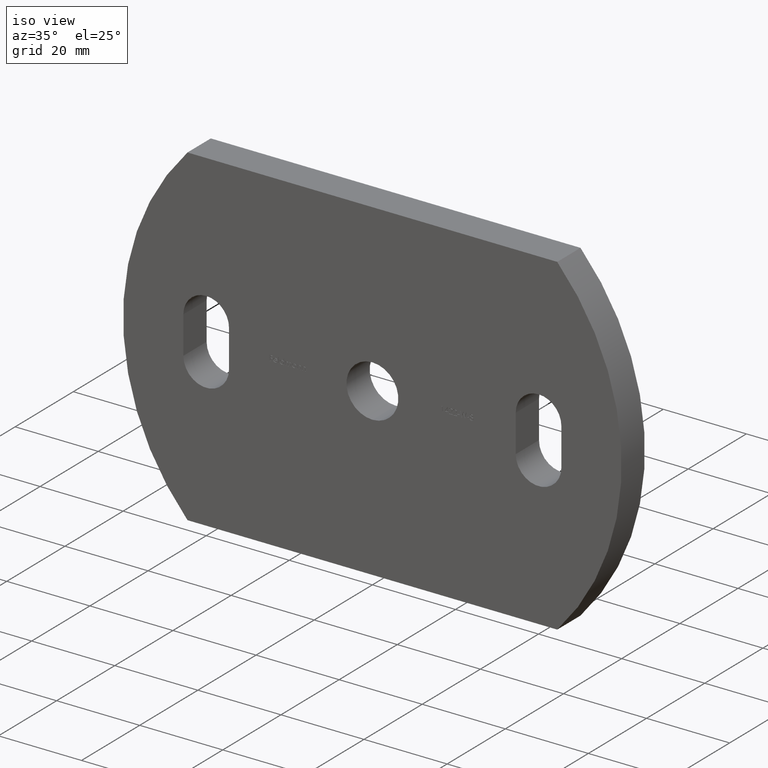
[diagram: clean part render]
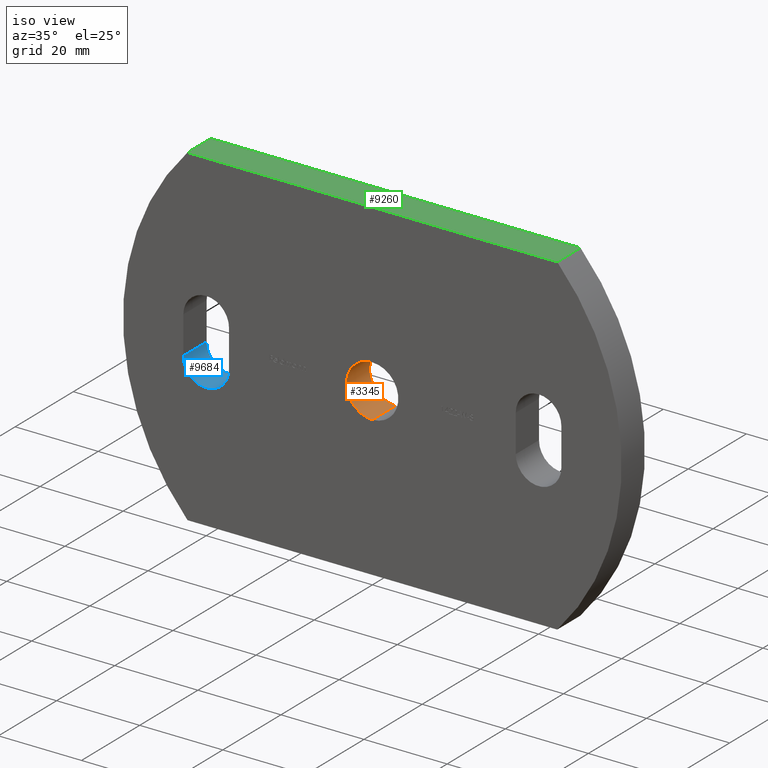
[diagram: same view with three faces highlighted in distinct colors, each labeled with its STEP entity id]
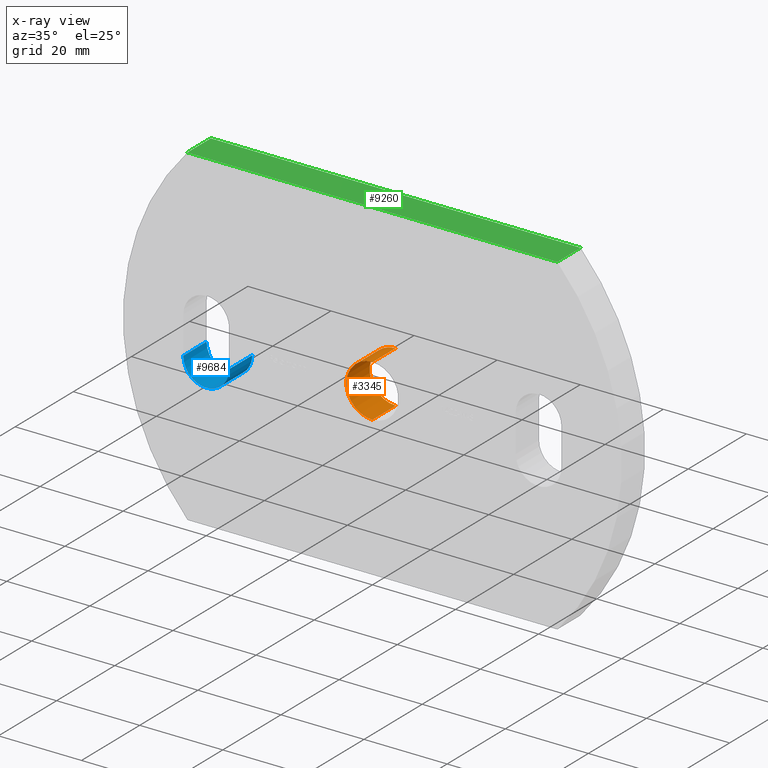
[diagram: x-ray of the same camera — body ghosted, the three highlighted faces saturated]
A machine part, iso view with three faces highlighted in distinct colors.
The next image is the same camera in x-ray (body ghosted, the three faces saturated) — at least one of them is partly hidden behind the body in this view.
Their STEP definitions:

[orange] entity #3345 — the highlighted cylindrical surface (edge-blend (fillet) strip) has radius 6.25 mm, axis along (-0, 1, -0).
#78 = VERTEX_POINT ( 'NONE', #427 ) ;
#427 = CARTESIAN_POINT ( 'NONE',  ( 0.0000000000000000000, 0.0000000000000000000, 6.250000000000000000 ) ) ;
#518 = DIRECTION ( 'NONE',  ( -0.0000000000000000000, 1.000000000000000000, -0.0000000000000000000 ) ) ;
#854 = CARTESIAN_POINT ( 'NONE',  ( 0.0000000000000000000, 0.0000000000000000000, 0.0000000000000000000 ) ) ;
#966 = DIRECTION ( 'NONE',  ( 0.0000000000000000000, 0.0000000000000000000, 1.000000000000000000 ) ) ;
#1030 = CARTESIAN_POINT ( 'NONE',  ( 0.0000000000000000000, 0.0000000000000000000, 6.250000000000000000 ) ) ;
#1176 = VECTOR ( 'NONE', #518, 1000.000000000000000 ) ;
#1422 = AXIS2_PLACEMENT_3D ( 'NONE', #854, #6079, #7661 ) ;
#1505 = EDGE_CURVE ( 'NONE', #8045, #78, #10433, .T. ) ;
#1748 = DIRECTION ( 'NONE',  ( 0.0000000000000000000, 1.000000000000000000, 0.0000000000000000000 ) ) ;
#1817 = LINE ( 'NONE', #1030, #1176 ) ;
#2091 = ORIENTED_EDGE ( 'NONE', *, *, #1505, .F. ) ;
#2269 = CYLINDRICAL_SURFACE ( 'NONE', #1422, 6.250000000000000000 ) ;
#2776 = EDGE_LOOP ( 'NONE', ( #2091, #9174, #10166, #3926 ) ) ;
#3345 = ADVANCED_FACE ( 'NONE', ( #10808 ), #2269, .F. ) ;
#3752 = DIRECTION ( 'NONE',  ( 0.0000000000000000000, 1.000000000000000000, 0.0000000000000000000 ) ) ;
#3764 = VERTEX_POINT ( 'NONE', #9494 ) ;
#3926 = ORIENTED_EDGE ( 'NONE', *, *, #5828, .F. ) ;
#4636 = CARTESIAN_POINT ( 'NONE',  ( 0.0000000000000000000, 8.000000000000000000, 0.0000000000000000000 ) ) ;
#5828 = EDGE_CURVE ( 'NONE', #78, #7514, #1817, .T. ) ;
#5871 = CIRCLE ( 'NONE', #9036, 6.250000000000000000 ) ;
#6079 = DIRECTION ( 'NONE',  ( -0.0000000000000000000, 1.000000000000000000, -0.0000000000000000000 ) ) ;
#6903 = DIRECTION ( 'NONE',  ( -0.0000000000000000000, 1.000000000000000000, -0.0000000000000000000 ) ) ;
#7087 = EDGE_CURVE ( 'NONE', #3764, #7514, #5871, .T. ) ;
#7514 = VERTEX_POINT ( 'NONE', #10589 ) ;
#7661 = DIRECTION ( 'NONE',  ( 0.0000000000000000000, 0.0000000000000000000, 1.000000000000000000 ) ) ;
#8045 = VERTEX_POINT ( 'NONE', #8659 ) ;
#8450 = LINE ( 'NONE', #8553, #9526 ) ;
#8553 = CARTESIAN_POINT ( 'NONE',  ( 7.654042494670957600E-016, 0.0000000000000000000, -6.250000000000000000 ) ) ;
#8659 = CARTESIAN_POINT ( 'NONE',  ( 7.654042494670957600E-016, 0.0000000000000000000, -6.250000000000000000 ) ) ;
#8792 = DIRECTION ( 'NONE',  ( 0.0000000000000000000, 0.0000000000000000000, 1.000000000000000000 ) ) ;
#9036 = AXIS2_PLACEMENT_3D ( 'NONE', #4636, #3752, #8792 ) ;
#9174 = ORIENTED_EDGE ( 'NONE', *, *, #10484, .T. ) ;
#9284 = CARTESIAN_POINT ( 'NONE',  ( 0.0000000000000000000, 0.0000000000000000000, 0.0000000000000000000 ) ) ;
#9424 = AXIS2_PLACEMENT_3D ( 'NONE', #9284, #1748, #966 ) ;
#9494 = CARTESIAN_POINT ( 'NONE',  ( 7.654042494670957600E-016, 8.000000000000000000, -6.250000000000000000 ) ) ;
#9526 = VECTOR ( 'NONE', #6903, 1000.000000000000000 ) ;
#10166 = ORIENTED_EDGE ( 'NONE', *, *, #7087, .T. ) ;
#10433 = CIRCLE ( 'NONE', #9424, 6.250000000000000000 ) ;
#10484 = EDGE_CURVE ( 'NONE', #8045, #3764, #8450, .T. ) ;
#10589 = CARTESIAN_POINT ( 'NONE',  ( 0.0000000000000000000, 8.000000000000000000, 6.250000000000000000 ) ) ;
#10808 = FACE_OUTER_BOUND ( 'NONE', #2776, .T. ) ;

[blue] entity #9684 — the highlighted cylindrical surface (edge-blend (fillet) strip) has radius 5.5 mm, axis along (-0, 1, -0).
#23 = ORIENTED_EDGE ( 'NONE', *, *, #3245, .T. ) ;
#493 = VECTOR ( 'NONE', #8169, 1000.000000000000000 ) ;
#669 = CARTESIAN_POINT ( 'NONE',  ( -45.50000000000000000, 0.0000000000000000000, -4.499999999999989300 ) ) ;
#847 = CARTESIAN_POINT ( 'NONE',  ( -45.50000000000000000, 0.0000000000000000000, -4.499999999999989300 ) ) ;
#1130 = AXIS2_PLACEMENT_3D ( 'NONE', #4068, #5672, #1419 ) ;
#1419 = DIRECTION ( 'NONE',  ( 0.0000000000000000000, 0.0000000000000000000, 1.000000000000000000 ) ) ;
#1660 = CARTESIAN_POINT ( 'NONE',  ( -40.00000000000000000, 0.0000000000000000000, -4.500000000000008000 ) ) ;
#2093 = DIRECTION ( 'NONE',  ( 0.0000000000000000000, 1.000000000000000000, 0.0000000000000000000 ) ) ;
#2316 = EDGE_LOOP ( 'NONE', ( #23, #3471, #4824, #9014 ) ) ;
#2320 = CIRCLE ( 'NONE', #6392, 5.499999999999998200 ) ;
#3183 = DIRECTION ( 'NONE',  ( -0.0000000000000000000, 1.000000000000000000, -0.0000000000000000000 ) ) ;
#3245 = EDGE_CURVE ( 'NONE', #7723, #6645, #7110, .T. ) ;
#3471 = ORIENTED_EDGE ( 'NONE', *, *, #8226, .F. ) ;
#3808 = DIRECTION ( 'NONE',  ( 0.0000000000000000000, 0.0000000000000000000, 1.000000000000000000 ) ) ;
#3927 = VECTOR ( 'NONE', #3183, 1000.000000000000000 ) ;
#4068 = CARTESIAN_POINT ( 'NONE',  ( -40.00000000000000000, 0.0000000000000000000, -4.500000000000008000 ) ) ;
#4652 = CARTESIAN_POINT ( 'NONE',  ( -40.00000000000000000, 8.000000000000000000, -4.500000000000008000 ) ) ;
#4824 = ORIENTED_EDGE ( 'NONE', *, *, #8668, .F. ) ;
#4844 = LINE ( 'NONE', #7299, #493 ) ;
#4963 = VERTEX_POINT ( 'NONE', #847 ) ;
#5672 = DIRECTION ( 'NONE',  ( -0.0000000000000000000, 1.000000000000000000, -0.0000000000000000000 ) ) ;
#6112 = AXIS2_PLACEMENT_3D ( 'NONE', #4652, #2093, #3808 ) ;
#6168 = VERTEX_POINT ( 'NONE', #10424 ) ;
#6392 = AXIS2_PLACEMENT_3D ( 'NONE', #1660, #9306, #7448 ) ;
#6645 = VERTEX_POINT ( 'NONE', #8583 ) ;
#7110 = CIRCLE ( 'NONE', #6112, 5.499999999999998200 ) ;
#7299 = CARTESIAN_POINT ( 'NONE',  ( -34.50000000000000000, 0.0000000000000000000, -4.499999999999987600 ) ) ;
#7448 = DIRECTION ( 'NONE',  ( 0.0000000000000000000, 0.0000000000000000000, 1.000000000000000000 ) ) ;
#7556 = EDGE_CURVE ( 'NONE', #6168, #7723, #4844, .T. ) ;
#7723 = VERTEX_POINT ( 'NONE', #10015 ) ;
#8169 = DIRECTION ( 'NONE',  ( -0.0000000000000000000, 1.000000000000000000, -0.0000000000000000000 ) ) ;
#8226 = EDGE_CURVE ( 'NONE', #4963, #6645, #8743, .T. ) ;
#8583 = CARTESIAN_POINT ( 'NONE',  ( -45.50000000000000000, 8.000000000000000000, -4.499999999999989300 ) ) ;
#8668 = EDGE_CURVE ( 'NONE', #6168, #4963, #2320, .T. ) ;
#8743 = LINE ( 'NONE', #669, #3927 ) ;
#9014 = ORIENTED_EDGE ( 'NONE', *, *, #7556, .T. ) ;
#9306 = DIRECTION ( 'NONE',  ( 0.0000000000000000000, 1.000000000000000000, 0.0000000000000000000 ) ) ;
#9657 = CYLINDRICAL_SURFACE ( 'NONE', #1130, 5.499999999999998200 ) ;
#9684 = ADVANCED_FACE ( 'NONE', ( #9784 ), #9657, .F. ) ;
#9784 = FACE_OUTER_BOUND ( 'NONE', #2316, .T. ) ;
#10015 = CARTESIAN_POINT ( 'NONE',  ( -34.50000000000000000, 8.000000000000000000, -4.499999999999987600 ) ) ;
#10424 = CARTESIAN_POINT ( 'NONE',  ( -34.50000000000000000, 0.0000000000000000000, -4.499999999999987600 ) ) ;

[green] entity #9260 — the highlighted planar face has unit normal (0, 0, -1).
#179 = VECTOR ( 'NONE', #6955, 1000.000000000000000 ) ;
#220 = ORIENTED_EDGE ( 'NONE', *, *, #6431, .F. ) ;
#999 = ORIENTED_EDGE ( 'NONE', *, *, #9963, .T. ) ;
#1132 = ORIENTED_EDGE ( 'NONE', *, *, #2021, .T. ) ;
#1484 = CARTESIAN_POINT ( 'NONE',  ( 44.49999999999997900, 8.000000000000000000, 40.00000000000001400 ) ) ;
#1876 = VECTOR ( 'NONE', #3318, 1000.000000000000000 ) ;
#2021 = EDGE_CURVE ( 'NONE', #7483, #5189, #10421, .T. ) ;
#2163 = CARTESIAN_POINT ( 'NONE',  ( -44.50000000000002100, 0.0000000000000000000, 39.99999999999999300 ) ) ;
#2331 = DIRECTION ( 'NONE',  ( -0.0000000000000000000, -1.000000000000000000, -0.0000000000000000000 ) ) ;
#2342 = EDGE_CURVE ( 'NONE', #6479, #3096, #5025, .T. ) ;
#2449 = CARTESIAN_POINT ( 'NONE',  ( -44.50000000000002100, 8.000000000000000000, 39.99999999999999300 ) ) ;
#3096 = VERTEX_POINT ( 'NONE', #7006 ) ;
#3318 = DIRECTION ( 'NONE',  ( 1.000000000000000000, 0.0000000000000000000, 2.338953001317043400E-016 ) ) ;
#3464 = CARTESIAN_POINT ( 'NONE',  ( -44.50000000000002100, 8.000000000000000000, 39.99999999999999300 ) ) ;
#3944 = VECTOR ( 'NONE', #2331, 1000.000000000000000 ) ;
#4170 = DIRECTION ( 'NONE',  ( -0.0000000000000000000, -1.000000000000000000, -0.0000000000000000000 ) ) ;
#4672 = DIRECTION ( 'NONE',  ( -1.000000000000000000, 0.0000000000000000000, -2.338953001317043900E-016 ) ) ;
#4853 = LINE ( 'NONE', #1484, #3944 ) ;
#5025 = LINE ( 'NONE', #7499, #1876 ) ;
#5189 = VERTEX_POINT ( 'NONE', #9570 ) ;
#5501 = DIRECTION ( 'NONE',  ( 2.338953001317043900E-016, 0.0000000000000000000, -1.000000000000000000 ) ) ;
#5979 = VECTOR ( 'NONE', #4170, 1000.000000000000000 ) ;
#6431 = EDGE_CURVE ( 'NONE', #3096, #5189, #4853, .T. ) ;
#6479 = VERTEX_POINT ( 'NONE', #3464 ) ;
#6828 = EDGE_LOOP ( 'NONE', ( #1132, #220, #10098, #999 ) ) ;
#6955 = DIRECTION ( 'NONE',  ( 1.000000000000000000, 0.0000000000000000000, 2.338953001317043400E-016 ) ) ;
#7006 = CARTESIAN_POINT ( 'NONE',  ( 44.49999999999997900, 8.000000000000000000, 40.00000000000001400 ) ) ;
#7141 = PLANE ( 'NONE',  #8627 ) ;
#7483 = VERTEX_POINT ( 'NONE', #2163 ) ;
#7499 = CARTESIAN_POINT ( 'NONE',  ( -44.50000000000002100, 8.000000000000000000, 39.99999999999999300 ) ) ;
#8196 = LINE ( 'NONE', #2449, #5979 ) ;
#8627 = AXIS2_PLACEMENT_3D ( 'NONE', #10473, #5501, #4672 ) ;
#9260 = ADVANCED_FACE ( 'NONE', ( #10869 ), #7141, .F. ) ;
#9570 = CARTESIAN_POINT ( 'NONE',  ( 44.49999999999997900, 0.0000000000000000000, 40.00000000000001400 ) ) ;
#9963 = EDGE_CURVE ( 'NONE', #6479, #7483, #8196, .T. ) ;
#10098 = ORIENTED_EDGE ( 'NONE', *, *, #2342, .F. ) ;
#10253 = CARTESIAN_POINT ( 'NONE',  ( -44.50000000000002100, 0.0000000000000000000, 39.99999999999999300 ) ) ;
#10421 = LINE ( 'NONE', #10253, #179 ) ;
#10473 = CARTESIAN_POINT ( 'NONE',  ( -44.50000000000002100, 8.000000000000000000, 39.99999999999999300 ) ) ;
#10869 = FACE_OUTER_BOUND ( 'NONE', #6828, .T. ) ;